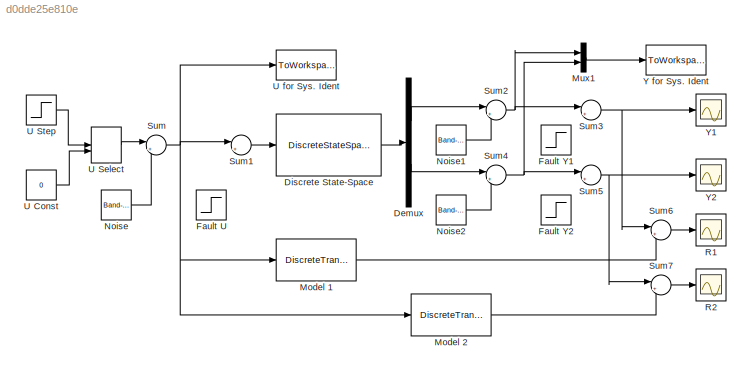
MODEL slx_d0dde25e810e
KIND model
CONFIG AbsTol = auto
CONFIG EnableMultiTasking = on
CONFIG FixedStep = 0.025
CONFIG MaxStep = auto
CONFIG MinStep = auto
CONFIG RelTol = 1e-3
CONFIG SampleTimeConstraint = Unconstrained
CONFIG SolverName = ode5
CONFIG StartTime = 0.0
CONFIG StopTime = 15
BLOCK [Demux] Demux
  DisplayOption = none
  Outputs = 2
BLOCK [DiscreteStateSpace] Discrete State-Space
  A = [0.9769 0.0038;\n0.0936 0.9225]
  B = [2.1521;\n3.8186]
  C = [1 0; 0 1]
  D = [0;0]
  SampleTime = 0.025
BLOCK [Step] Fault U
  After = 0
  SampleTime = 0
BLOCK [Step] Fault Y1
  After = 0
  SampleTime = 0
BLOCK [Step] Fault Y2
  After = 0
  SampleTime = 0
BLOCK [DiscreteTransferFcn] Model 1
  Denominator = [1 -0.9827]
  InputPortMap = u0
  Numerator = [2.184]
  SampleTime = 0.025
BLOCK [DiscreteTransferFcn] Model 2
  Denominator = [1 -0.9822]
  InputPortMap = u0
  Numerator = [3.587]
  SampleTime = 0.025
BLOCK [Mux] Mux1
  DisplayOption = bar
  Inputs = 2
BLOCK [Reference] Noise  REF=simulink/Sources/Band-Limited
White Noise
  SourceBlock = simulink/Sources/Band-Limited\nWhite Noise
  SourceType = Band-Limited White Noise.
BLOCK [Reference] Noise1  REF=simulink/Sources/Band-Limited
White Noise
  SourceBlock = simulink/Sources/Band-Limited\nWhite Noise
  SourceType = Band-Limited White Noise.
BLOCK [Reference] Noise2  REF=simulink/Sources/Band-Limited
White Noise
  SourceBlock = simulink/Sources/Band-Limited\nWhite Noise
  SourceType = Band-Limited White Noise.
BLOCK [Scope] R1
  Floating = off
  NumInputPorts = 1
  ScopeSpecificationString = Simulink.scopes.TimeScopeBlockCfg('CurrentConfiguration', extmgr.ConfigurationSet(extmgr.Configuration('Core','General UI',true),extmgr.Configuration('Core','Source UI',true),extmgr.Configuration('Sources','WiredSimulink',true,'DataLoggingVariableName','ScopeData1','DataLoggingSaveFormat','StructureWithTime','DataLoggingDecimation','1','DataLoggingDecimateData',true),extmgr.Configuration('Visuals'...<+1731ch>
BLOCK [Scope] R2
  Floating = off
  NumInputPorts = 1
  ScopeSpecificationString = Simulink.scopes.TimeScopeBlockCfg('CurrentConfiguration', extmgr.ConfigurationSet(extmgr.Configuration('Core','General UI',true),extmgr.Configuration('Core','Source UI',true),extmgr.Configuration('Sources','WiredSimulink',true,'DataLoggingVariableName','ScopeData3','DataLoggingSaveFormat','StructureWithTime','DataLoggingDecimation','1','DataLoggingDecimateData',true),extmgr.Configuration('Visuals'...<+1731ch>
BLOCK [Sum] Sum
  Inputs = |++
  SaturateOnIntegerOverflow = on
BLOCK [Sum] Sum1
  Inputs = |++
  SaturateOnIntegerOverflow = on
BLOCK [Sum] Sum2
  Inputs = |++
  SaturateOnIntegerOverflow = on
BLOCK [Sum] Sum3
  Inputs = |++
  SaturateOnIntegerOverflow = on
BLOCK [Sum] Sum4
  Inputs = |++
  SaturateOnIntegerOverflow = on
BLOCK [Sum] Sum5
  Inputs = |++
  SaturateOnIntegerOverflow = on
BLOCK [Sum] Sum6
  Inputs = |+-
  SaturateOnIntegerOverflow = on
BLOCK [Sum] Sum7
  Inputs = |+-
  SaturateOnIntegerOverflow = on
BLOCK [Constant] U Const
  Value = 0
BLOCK [ManualSwitch] U Select 
  NameLocation = top
BLOCK [Step] U Step
  SampleTime = 0
BLOCK [ToWorkspace] U for Sys. Ident
  MaxDataPoints = inf
  SampleTime = 0.025
  VariableName = Uout
BLOCK [ToWorkspace] Y for Sys. Ident
  MaxDataPoints = inf
  SampleTime = 0.025
  VariableName = Yout
BLOCK [Scope] Y1
  Floating = off
  NumInputPorts = 1
  ScopeSpecificationString = Simulink.scopes.TimeScopeBlockCfg('CurrentConfiguration', extmgr.ConfigurationSet(extmgr.Configuration('Core','General UI',true,'FigureColor',[0 0 0]),extmgr.Configuration('Core','Source UI',true),extmgr.Configuration('Sources','WiredSimulink',true,'DataLoggingSaveFormat','StructureWithTime','DataLoggingDecimation','1','DataLoggingDecimateData',true),extmgr.Configuration('Visuals','Time Domain',tr...<+1815ch>
BLOCK [Scope] Y2
  Floating = off
  NumInputPorts = 1
  ScopeSpecificationString = Simulink.scopes.TimeScopeBlockCfg('CurrentConfiguration', extmgr.ConfigurationSet(extmgr.Configuration('Core','General UI',true),extmgr.Configuration('Core','Source UI',true),extmgr.Configuration('Sources','WiredSimulink',true,'DataLoggingVariableName','ScopeData2','DataLoggingSaveFormat','StructureWithTime','DataLoggingDecimation','1','DataLoggingDecimateData',true),extmgr.Configuration('Visuals'...<+1741ch>
LINE Demux:1 -> Sum2:1
LINE Demux:2 -> Sum4:1
LINE Discrete State-Space:1 -> Demux:1
LINE Model 1:1 -> Sum6:2
LINE Model 2:1 -> Sum7:2
LINE Mux1:1 -> Y for Sys. Ident:1
LINE Noise1:1 -> Sum2:2
LINE Noise2:1 -> Sum4:2
LINE Noise:1 -> Sum:2
LINE Sum1:1 -> Discrete State-Space:1
NET Sum2:1 -> Mux1:1, Sum3:1
NET Sum3:1 -> Sum6:1, Y1:1
NET Sum4:1 -> Mux1:2, Sum5:1
NET Sum5:1 -> Sum7:1, Y2:1
LINE Sum6:1 -> R1:1
LINE Sum7:1 -> R2:1
NET Sum:1 -> Model 1:1, Model 2:1, Sum1:1, U for Sys. Ident:1
LINE U Const:1 -> U Select :2
LINE U Select :1 -> Sum:1
LINE U Step:1 -> U Select :1
note: NET lines group one-source signal fan-out (src -> all destinations, sorted); 1:1 wires keep LINE
